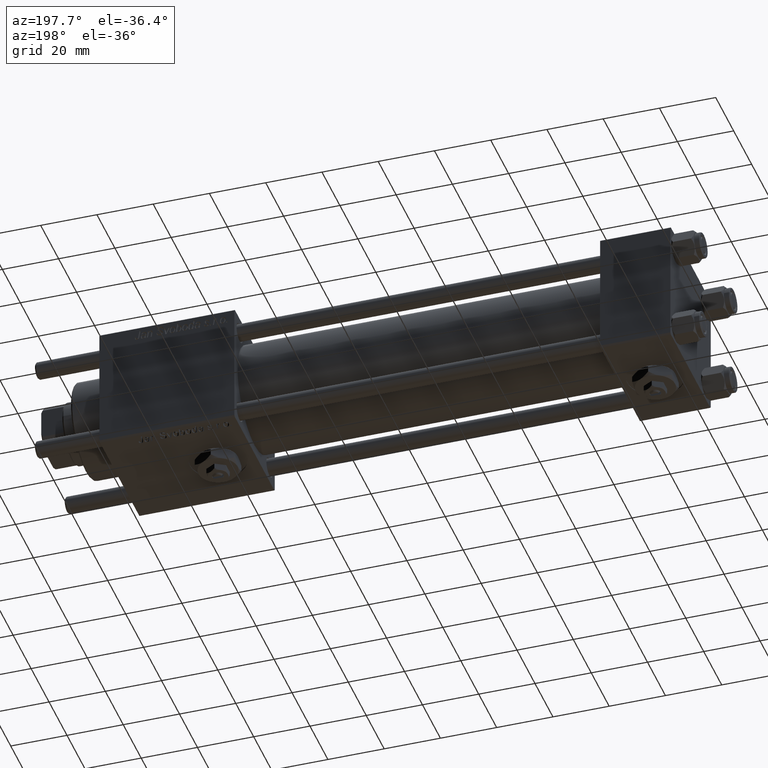
[diagram: clean part render]
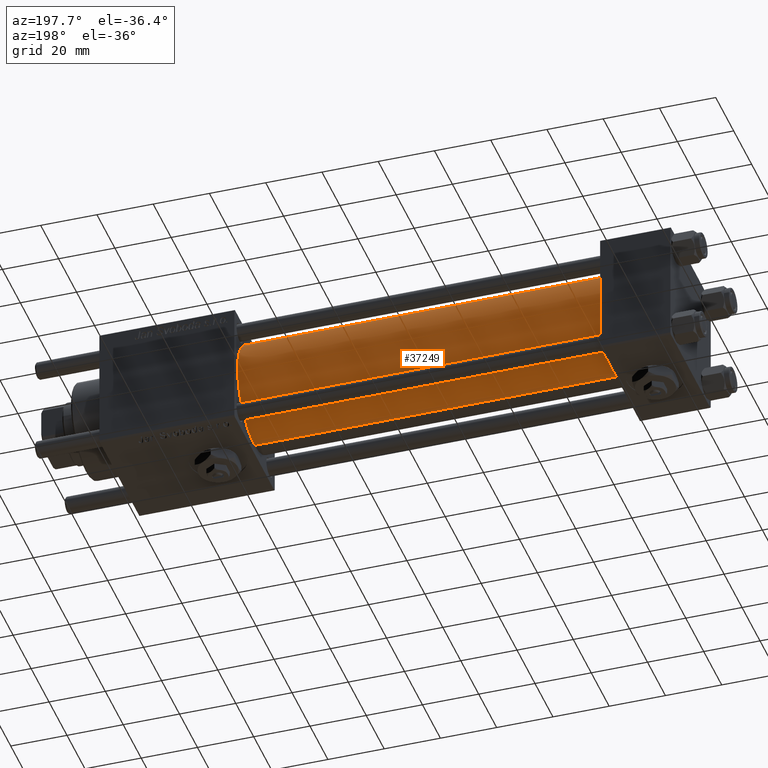
[diagram: same view with one face highlighted and labeled with its STEP entity id]
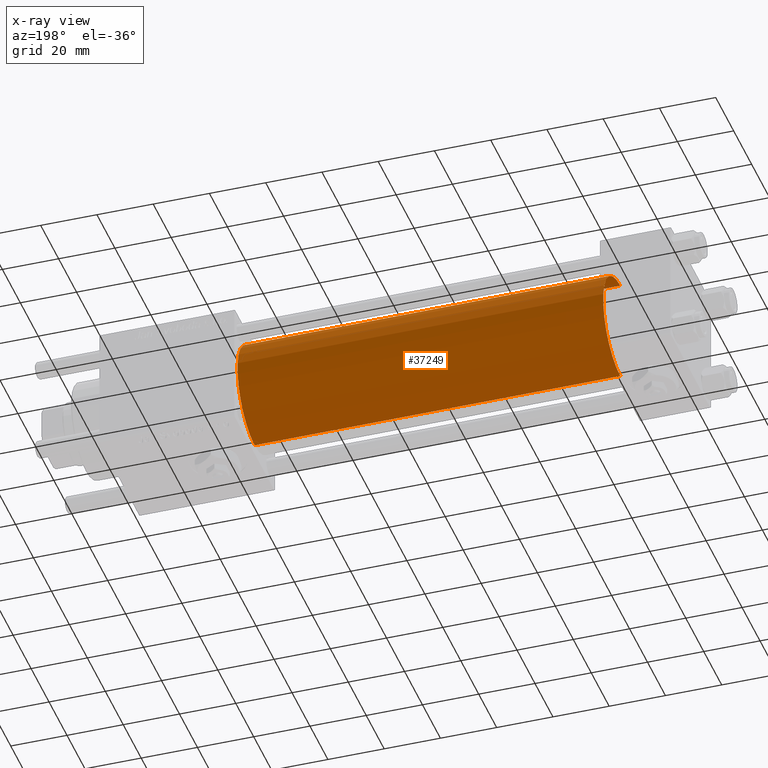
[diagram: x-ray of the same camera — body ghosted, the highlighted face saturated]
A machine part, auxiliary view. The second image highlights one B-rep face of the part: STEP entity #37249.
The next image is the same camera in x-ray: the body ghosted, the highlighted face saturated — about 0% of this face is hidden behind the body in this view.
In plain terms, the highlighted cylindrical surface (partial cylindrical patch) has radius 19 mm, axis along (-1, -0, -0).
Its self-contained STEP definition (entity closure, byte-faithful):
#525 = ORIENTED_EDGE ( 'NONE', *, *, #9607, .F. ) ;
#678 = DIRECTION ( 'NONE',  ( -1.000000000000000000, -0.000000000000000000, -0.000000000000000000 ) ) ;
#2337 = DIRECTION ( 'NONE',  ( 1.000000000000000000, 0.000000000000000000, 0.000000000000000000 ) ) ;
#3112 = AXIS2_PLACEMENT_3D ( 'NONE', #20655, #6711, #44017 ) ;
#5649 = VERTEX_POINT ( 'NONE', #25364 ) ;
#6346 = CARTESIAN_POINT ( 'NONE',  ( 155.0000000000000000, -2.602085213965210642E-15, 0.000000000000000000 ) ) ;
#6581 = CARTESIAN_POINT ( 'NONE',  ( 24.99999999999999289, -2.752562955852396712E-16, -19.00000000000000000 ) ) ;
#6711 = DIRECTION ( 'NONE',  ( 1.000000000000000000, -0.000000000000000000, 0.000000000000000000 ) ) ;
#7744 = AXIS2_PLACEMENT_3D ( 'NONE', #6346, #47608, #53339 ) ;
#9019 = CARTESIAN_POINT ( 'NONE',  ( 155.0000000000000000, -2.752562955852396712E-16, -19.00000000000000000 ) ) ;
#9488 = LINE ( 'NONE', #42825, #60033 ) ;
#9607 = EDGE_CURVE ( 'NONE', #5649, #12522, #48539, .T. ) ;
#12080 = CYLINDRICAL_SURFACE ( 'NONE', #7744, 19.00000000000000000 ) ;
#12522 = VERTEX_POINT ( 'NONE', #51982 ) ;
#13471 = VECTOR ( 'NONE', #16074, 1000.000000000000000 ) ;
#16074 = DIRECTION ( 'NONE',  ( -1.000000000000000000, -0.000000000000000000, -0.000000000000000000 ) ) ;
#16930 = EDGE_LOOP ( 'NONE', ( #35196, #55686, #39471, #525 ) ) ;
#18429 = EDGE_CURVE ( 'NONE', #38408, #12522, #37969, .T. ) ;
#20655 = CARTESIAN_POINT ( 'NONE',  ( 24.99999999999999289, -2.602085213965210642E-15, 0.000000000000000000 ) ) ;
#25359 = CARTESIAN_POINT ( 'NONE',  ( 155.0000000000000000, -2.602085213965210642E-15, 0.000000000000000000 ) ) ;
#25364 = CARTESIAN_POINT ( 'NONE',  ( 155.0000000000000000, -2.602085213965210642E-15, 19.00000000000000000 ) ) ;
#31310 = VERTEX_POINT ( 'NONE', #9019 ) ;
#31429 = DIRECTION ( 'NONE',  ( 0.000000000000000000, 0.000000000000000000, -1.000000000000000000 ) ) ;
#33970 = CIRCLE ( 'NONE', #41741, 19.00000000000000000 ) ;
#35196 = ORIENTED_EDGE ( 'NONE', *, *, #41181, .F. ) ;
#36836 = EDGE_CURVE ( 'NONE', #31310, #38408, #9488, .T. ) ;
#37249 = ADVANCED_FACE ( 'NONE', ( #53649 ), #12080, .T. ) ;
#37969 = CIRCLE ( 'NONE', #3112, 19.00000000000000000 ) ;
#38408 = VERTEX_POINT ( 'NONE', #6581 ) ;
#39471 = ORIENTED_EDGE ( 'NONE', *, *, #18429, .T. ) ;
#41181 = EDGE_CURVE ( 'NONE', #31310, #5649, #33970, .T. ) ;
#41741 = AXIS2_PLACEMENT_3D ( 'NONE', #25359, #2337, #31429 ) ;
#42825 = CARTESIAN_POINT ( 'NONE',  ( 155.0000000000000000, -2.752562955852396712E-16, -19.00000000000000000 ) ) ;
#44017 = DIRECTION ( 'NONE',  ( 0.000000000000000000, 0.000000000000000000, 1.000000000000000000 ) ) ;
#47608 = DIRECTION ( 'NONE',  ( -1.000000000000000000, -0.000000000000000000, -0.000000000000000000 ) ) ;
#48539 = LINE ( 'NONE', #57650, #13471 ) ;
#51982 = CARTESIAN_POINT ( 'NONE',  ( 24.99999999999999289, -2.602085213965210642E-15, 19.00000000000000000 ) ) ;
#53339 = DIRECTION ( 'NONE',  ( 0.000000000000000000, 0.000000000000000000, 1.000000000000000000 ) ) ;
#53649 = FACE_OUTER_BOUND ( 'NONE', #16930, .T. ) ;
#55686 = ORIENTED_EDGE ( 'NONE', *, *, #36836, .T. ) ;
#57650 = CARTESIAN_POINT ( 'NONE',  ( 155.0000000000000000, -2.602085213965210642E-15, 19.00000000000000000 ) ) ;
#60033 = VECTOR ( 'NONE', #678, 1000.000000000000000 ) ;